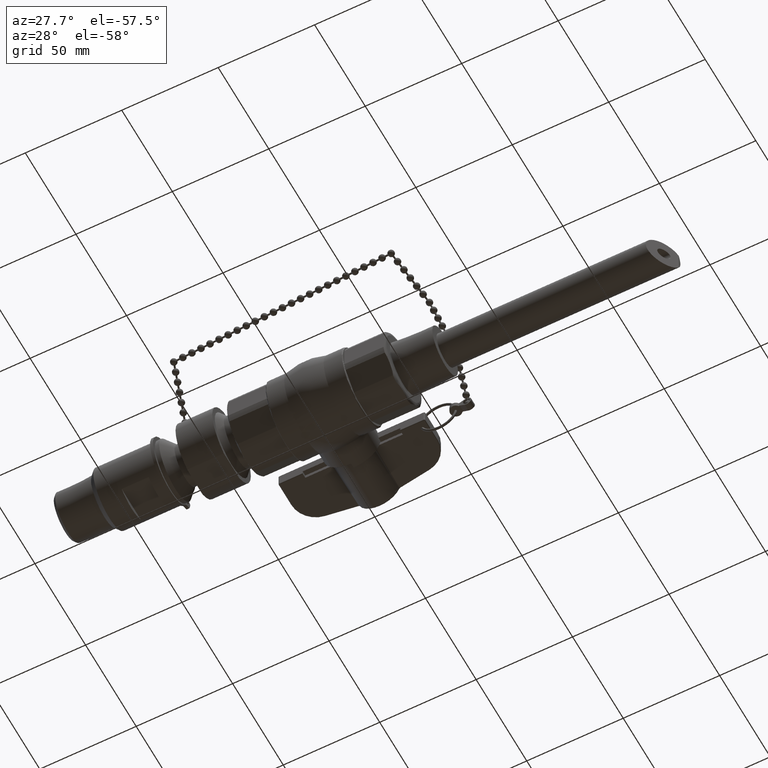
[diagram: clean part render]
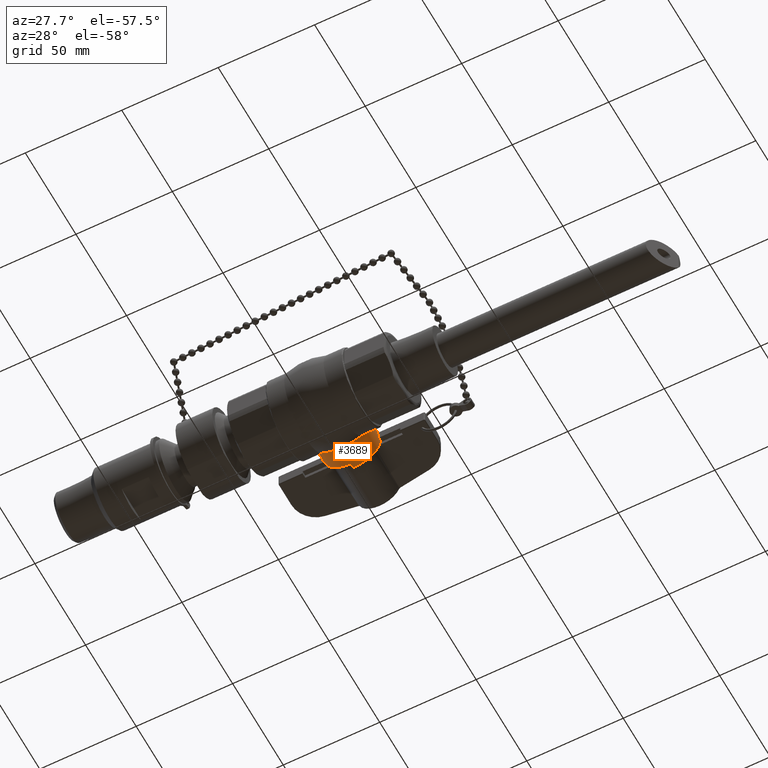
[diagram: same view with one face highlighted and labeled with its STEP entity id]
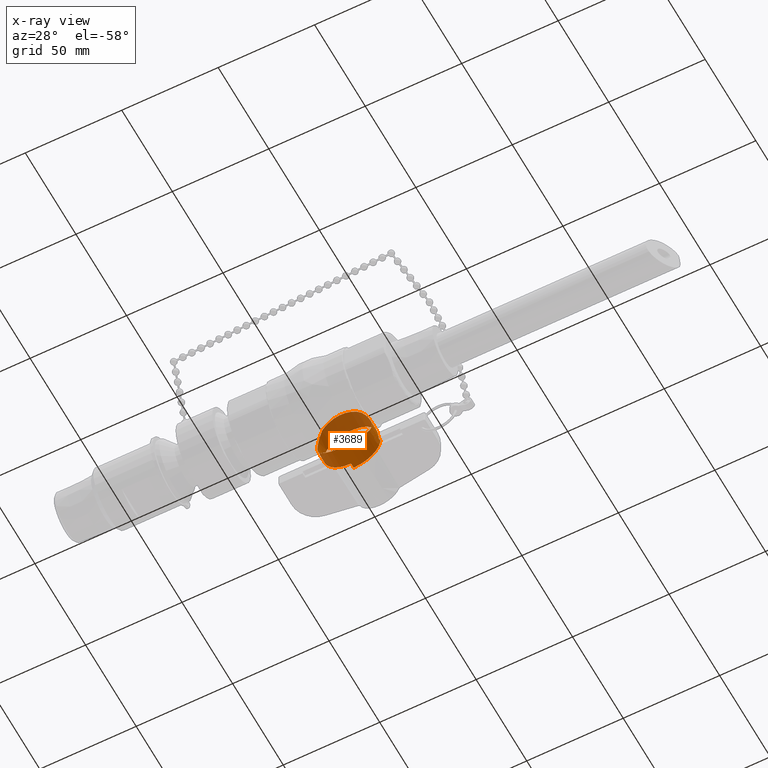
[diagram: x-ray of the same camera — body ghosted, the highlighted face saturated]
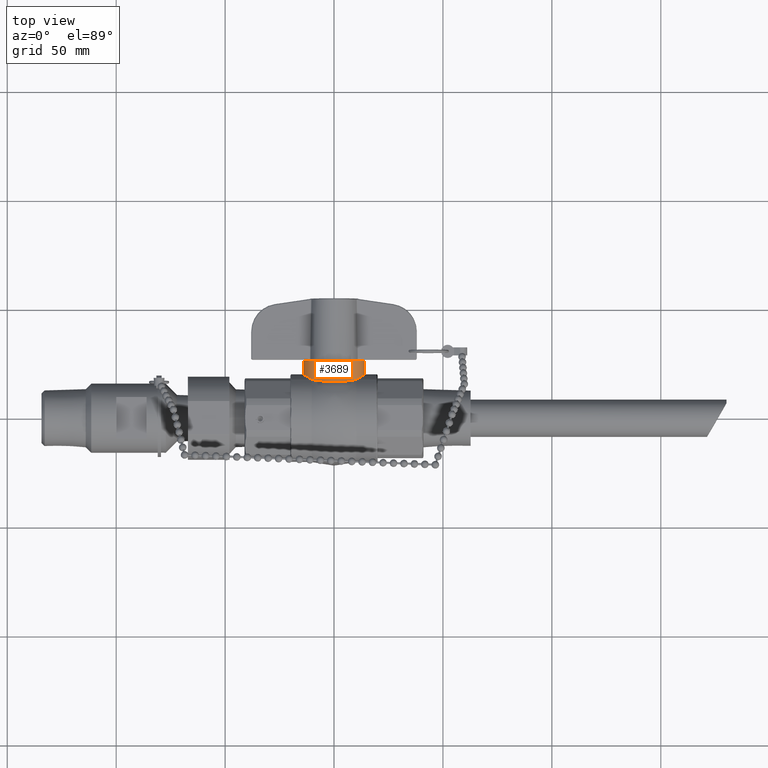
[diagram: same view with one face highlighted and labeled with its STEP entity id]
A machine part, auxiliary view. The second image highlights one B-rep face of the part: STEP entity #3689.
The next image is the same camera in x-ray: the body ghosted, the highlighted face saturated — about 32% of this face is hidden behind the body in this view.
A second angle (top view) of the same face is appended — the face is thin or edge-on in the first view.
In plain terms, the highlighted cylindrical surface (bore or boss wall) has radius 14.097 mm, axis along (0, -1, 0).
Its self-contained STEP definition (entity closure, byte-faithful):
#1643=CARTESIAN_POINT('',(0.402500000000000,0.694289204870708,-0.382123998199537));
#1644=VERTEX_POINT('',#1643);
#1645=CARTESIAN_POINT('',(0.402500000000000,0.694289204870708,0.382123998199537));
#1646=VERTEX_POINT('',#1645);
#1654=CARTESIAN_POINT('',(-0.402500000000000,0.694289204870708,0.382123998199537));
#1655=VERTEX_POINT('',#1654);
#1656=CARTESIAN_POINT('',(0.402500000000000,0.694289204870708,0.382123998199537));
#1657=CARTESIAN_POINT('',(0.366272588698172,0.686778647582645,0.420283164118689));
#1658=CARTESIAN_POINT('',(0.324757810098894,0.679177186437937,0.453143781187078));
#1659=CARTESIAN_POINT('',(0.239478826389135,0.666854707084221,0.502776451669650));
#1660=CARTESIAN_POINT('',(0.196982512229787,0.661937710556527,0.520915818224183));
#1661=CARTESIAN_POINT('',(0.085503317728400,0.653092031130762,0.552797558933748));
#1662=CARTESIAN_POINT('',(0.015411507061169,0.651153513062656,0.559182555543185));
#1663=CARTESIAN_POINT('',(-0.122132030906957,0.655040054361376,0.545676635481533));
#1664=CARTESIAN_POINT('',(-0.187918665550422,0.660597076469248,0.526596741499948));
#1665=CARTESIAN_POINT('',(-0.306177883503262,0.675827286896050,0.467374758510483));
#1666=CARTESIAN_POINT('',(-0.358259362394635,0.685117369753172,0.428723679769029));
#1667=CARTESIAN_POINT('',(-0.402500000000000,0.694289204870708,0.382123998199537));
#1668=B_SPLINE_CURVE_WITH_KNOTS('',3,(#1656,#1657,#1658,#1659,#1660,#1661,#1662,#1663,#1664,#1665,#1666,#1667),.UNSPECIFIED.,.F.,.U.,(4,2,2,2,2,4),(-2.304971812479363,-1.900047198235023,-1.547459075862200,-1.014315308233466,-0.494589476205239,0.0),.UNSPECIFIED.);
#1669=EDGE_CURVE('',#1646,#1655,#1668,.T.);
#1671=CARTESIAN_POINT('',(-0.402500000000000,0.694289204870708,-0.382123998199537));
#1672=VERTEX_POINT('',#1671);
#1680=CARTESIAN_POINT('',(-0.402500000000000,0.694289204870708,-0.382123998199537));
#1681=CARTESIAN_POINT('',(-0.366272588698172,0.686778647582645,-0.420283164118689));
#1682=CARTESIAN_POINT('',(-0.324757810098893,0.679177186437937,-0.453143781187078));
#1683=CARTESIAN_POINT('',(-0.239478826389136,0.666854707084221,-0.502776451669650));
#1684=CARTESIAN_POINT('',(-0.196982512229788,0.661937710556527,-0.520915818224182));
#1685=CARTESIAN_POINT('',(-0.085503317728400,0.653092031130762,-0.552797558933748));
#1686=CARTESIAN_POINT('',(-0.015411507061169,0.651153513062656,-0.559182555543185));
#1687=CARTESIAN_POINT('',(0.122132030906955,0.655040054361376,-0.545676635481533));
#1688=CARTESIAN_POINT('',(0.187918665550419,0.660597076469248,-0.526596741499950));
#1689=CARTESIAN_POINT('',(0.306177883503264,0.675827286896049,-0.467374758510483));
#1690=CARTESIAN_POINT('',(0.358259362394638,0.685117369753173,-0.428723679769026));
#1691=CARTESIAN_POINT('',(0.402500000000000,0.694289204870708,-0.382123998199537));
#1692=B_SPLINE_CURVE_WITH_KNOTS('',3,(#1680,#1681,#1682,#1683,#1684,#1685,#1686,#1687,#1688,#1689,#1690,#1691),.UNSPECIFIED.,.F.,.U.,(4,2,2,2,2,4),(-2.304971812479319,-1.900047198234974,-1.547459075862153,-1.014315308233422,-0.494589476205212,0.0),.UNSPECIFIED.);
#1693=EDGE_CURVE('',#1672,#1644,#1692,.T.);
#1973=CARTESIAN_POINT('',(6.796790E-017,1.040000000000000,-0.555000000000000));
#1974=VERTEX_POINT('',#1973);
#1981=CARTESIAN_POINT('',(0.555000000000000,1.040000000000000,0.0));
#1982=VERTEX_POINT('',#1981);
#1983=CARTESIAN_POINT('',(0.0,1.040000000000000,0.0));
#1984=DIRECTION('',(0.0,-1.0,0.0));
#1985=DIRECTION('',(-1.0,0.0,0.0));
#1986=AXIS2_PLACEMENT_3D('',#1983,#1984,#1985);
#1987=CIRCLE('',#1986,0.555000000000000);
#1988=EDGE_CURVE('',#1982,#1974,#1987,.T.);
#2005=CARTESIAN_POINT('',(6.796790E-017,1.140000000000000,-0.555000000000000));
#2006=VERTEX_POINT('',#2005);
#2013=CARTESIAN_POINT('',(6.796790E-017,1.040000000000000,-0.555000000000000));
#2014=DIRECTION('',(0.0,1.0,0.0));
#2015=VECTOR('',#2014,0.100000000000000);
#2016=LINE('',#2013,#2015);
#2017=EDGE_CURVE('',#1974,#2006,#2016,.T.);
#2029=CARTESIAN_POINT('',(0.555000000000000,1.058727388252525,6.796790E-017));
#2030=VERTEX_POINT('',#2029);
#2039=CARTESIAN_POINT('',(0.555000000000000,1.040000000000000,6.796790E-017));
#2040=DIRECTION('',(0.0,1.0,0.0));
#2041=VECTOR('',#2040,0.018727388252525);
#2042=LINE('',#2039,#2041);
#2043=EDGE_CURVE('',#1982,#2030,#2042,.T.);
#3470=CARTESIAN_POINT('',(0.402500000000000,0.694289204870708,-0.382123998199537));
#3471=CARTESIAN_POINT('',(0.445991388115991,0.719502449717207,-0.336313518357479));
#3472=CARTESIAN_POINT('',(0.484438606626481,0.744525616476509,-0.279388910762243));
#3473=CARTESIAN_POINT('',(0.525570669144028,0.772102159161733,-0.182115581408095));
#3474=CARTESIAN_POINT('',(0.536675348497231,0.779758645760761,-0.146248570559199));
#3475=CARTESIAN_POINT('',(0.551393112804413,0.789960429895558,-0.073312408489155));
#3476=CARTESIAN_POINT('',(0.555000000000000,0.792500000000000,-0.036241205771124));
#3477=CARTESIAN_POINT('',(0.555000000000000,0.792500000000000,0.036241205771124));
#3478=CARTESIAN_POINT('',(0.551393112804413,0.789960429895558,0.073312408489155));
#3479=CARTESIAN_POINT('',(0.536675348497231,0.779758645760761,0.146248570559199));
#3480=CARTESIAN_POINT('',(0.525570669144028,0.772102159161733,0.182115581408095));
#3481=CARTESIAN_POINT('',(0.484438606626481,0.744525616476509,0.279388910762243));
#3482=CARTESIAN_POINT('',(0.445991388115991,0.719502449717207,0.336313518357479));
#3483=CARTESIAN_POINT('',(0.402500000000000,0.694289204870708,0.382123998199537));
#3484=B_SPLINE_CURVE_WITH_KNOTS('',3,(#3470,#3471,#3472,#3473,#3474,#3475,#3476,#3477,#3478,#3479,#3480,#3481,#3482,#3483),.UNSPECIFIED.,.F.,.U.,(4,2,2,2,2,2,4),(5.610496093869709,6.123577943979999,6.399735931955966,6.675893919931932,6.952051907907898,7.228209895883865,7.741291745994155),.UNSPECIFIED.);
#3485=EDGE_CURVE('',#1644,#1646,#3484,.T.);
#3554=CARTESIAN_POINT('',(-0.402500000000000,0.694289204870708,0.382123998199537));
#3555=CARTESIAN_POINT('',(-0.445991388115991,0.719502449717207,0.336313518357479));
#3556=CARTESIAN_POINT('',(-0.484438606626481,0.744525616476509,0.279388910762243));
#3557=CARTESIAN_POINT('',(-0.525570669144028,0.772102159161733,0.182115581408095));
#3558=CARTESIAN_POINT('',(-0.536675348497231,0.779758645760761,0.146248570559199));
#3559=CARTESIAN_POINT('',(-0.551393112804413,0.789960429895558,0.073312408489155));
#3560=CARTESIAN_POINT('',(-0.555000000000000,0.792500000000000,0.036241205771124));
#3561=CARTESIAN_POINT('',(-0.555000000000000,0.792500000000000,-0.036241205771124));
#3562=CARTESIAN_POINT('',(-0.551393112804413,0.789960429895558,-0.073312408489155));
#3563=CARTESIAN_POINT('',(-0.536675348497231,0.779758645760761,-0.146248570559199));
#3564=CARTESIAN_POINT('',(-0.525570669144028,0.772102159161734,-0.182115581408095));
#3565=CARTESIAN_POINT('',(-0.484438606626481,0.744525616476509,-0.279388910762243));
#3566=CARTESIAN_POINT('',(-0.445991388115991,0.719502449717207,-0.336313518357479));
#3567=CARTESIAN_POINT('',(-0.402500000000000,0.694289204870708,-0.382123998199537));
#3568=B_SPLINE_CURVE_WITH_KNOTS('',3,(#3554,#3555,#3556,#3557,#3558,#3559,#3560,#3561,#3562,#3563,#3564,#3565,#3566,#3567),.UNSPECIFIED.,.F.,.U.,(4,2,2,2,2,2,4),(1.159900147248421,1.672981997358711,1.949139985334678,2.225297973310644,2.501455961286610,2.777613949262577,3.290695799372867),.UNSPECIFIED.);
#3569=EDGE_CURVE('',#1655,#1672,#3568,.T.);
#3649=CARTESIAN_POINT('',(0.0,1.040000000000000,0.0));
#3650=DIRECTION('',(0.0,-1.0,0.0));
#3651=DIRECTION('',(-1.0,0.0,0.0));
#3652=AXIS2_PLACEMENT_3D('',#3649,#3650,#3651);
#3653=CYLINDRICAL_SURFACE('',#3652,0.555000000000000);
#3654=ORIENTED_EDGE('',*,*,#3485,.F.);
#3655=ORIENTED_EDGE('',*,*,#1693,.F.);
#3656=ORIENTED_EDGE('',*,*,#3569,.F.);
#3657=ORIENTED_EDGE('',*,*,#1669,.F.);
#3658=EDGE_LOOP('',(#3654,#3655,#3656,#3657));
#3659=FACE_OUTER_BOUND('',#3658,.T.);
#3660=CARTESIAN_POINT('',(0.551655802034667,1.140000000000000,-0.060834826222229));
#3661=VERTEX_POINT('',#3660);
#3662=CARTESIAN_POINT('',(0.551655802034667,1.058727388252525,-0.060834826222229));
#3663=VERTEX_POINT('',#3662);
#3664=CARTESIAN_POINT('',(0.551655802034667,1.140000000000000,-0.060834826222229));
#3665=DIRECTION('',(0.0,-1.0,0.0));
#3666=VECTOR('',#3665,0.081272611747475);
#3667=LINE('',#3664,#3666);
#3668=EDGE_CURVE('',#3661,#3663,#3667,.T.);
#3669=ORIENTED_EDGE('',*,*,#3668,.T.);
#3670=CARTESIAN_POINT('',(0.0,1.058727388252525,0.0));
#3671=DIRECTION('',(0.0,-1.0,0.0));
#3672=DIRECTION('',(-1.0,0.0,0.0));
#3673=AXIS2_PLACEMENT_3D('',#3670,#3671,#3672);
#3674=CIRCLE('',#3673,0.555000000000000);
#3675=EDGE_CURVE('',#3663,#2030,#3674,.T.);
#3676=ORIENTED_EDGE('',*,*,#3675,.T.);
#3677=ORIENTED_EDGE('',*,*,#2043,.F.);
#3678=ORIENTED_EDGE('',*,*,#1988,.T.);
#3679=ORIENTED_EDGE('',*,*,#2017,.T.);
#3680=CARTESIAN_POINT('',(0.0,1.140000000000000,0.0));
#3681=DIRECTION('',(0.0,-1.0,0.0));
#3682=DIRECTION('',(-1.0,0.0,0.0));
#3683=AXIS2_PLACEMENT_3D('',#3680,#3681,#3682);
#3684=CIRCLE('',#3683,0.555000000000000);
#3685=EDGE_CURVE('',#2006,#3661,#3684,.T.);
#3686=ORIENTED_EDGE('',*,*,#3685,.T.);
#3687=EDGE_LOOP('',(#3669,#3676,#3677,#3678,#3679,#3686));
#3688=FACE_BOUND('',#3687,.T.);
#3689=ADVANCED_FACE('',(#3659,#3688),#3653,.T.);